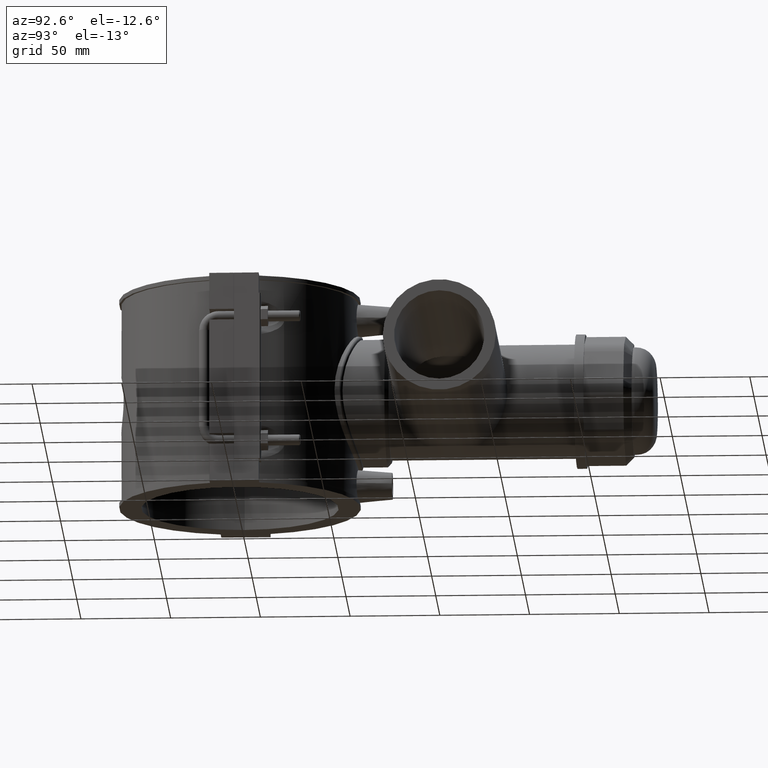
[diagram: clean part render]
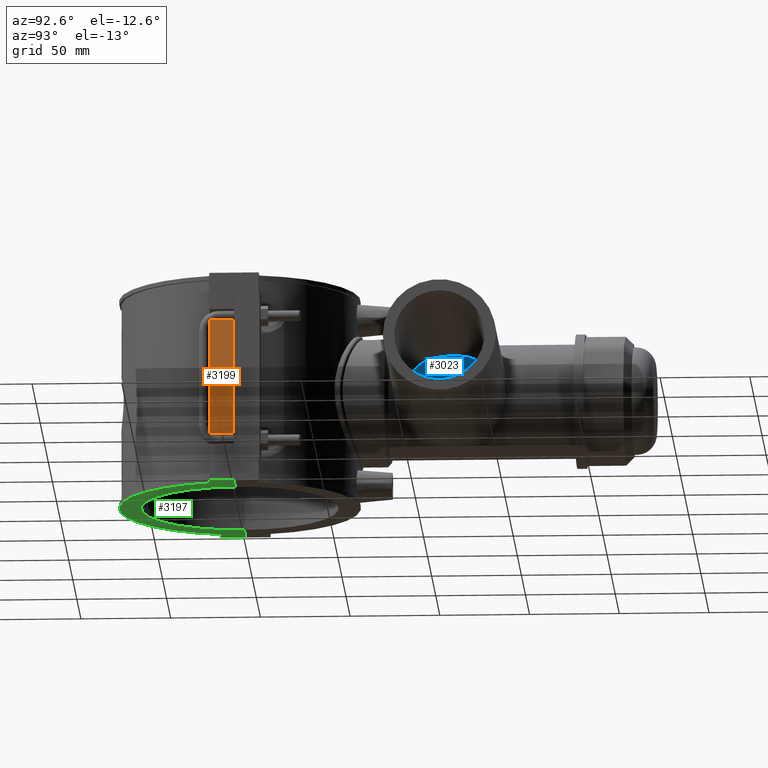
[diagram: same view with three faces highlighted in distinct colors, each labeled with its STEP entity id]
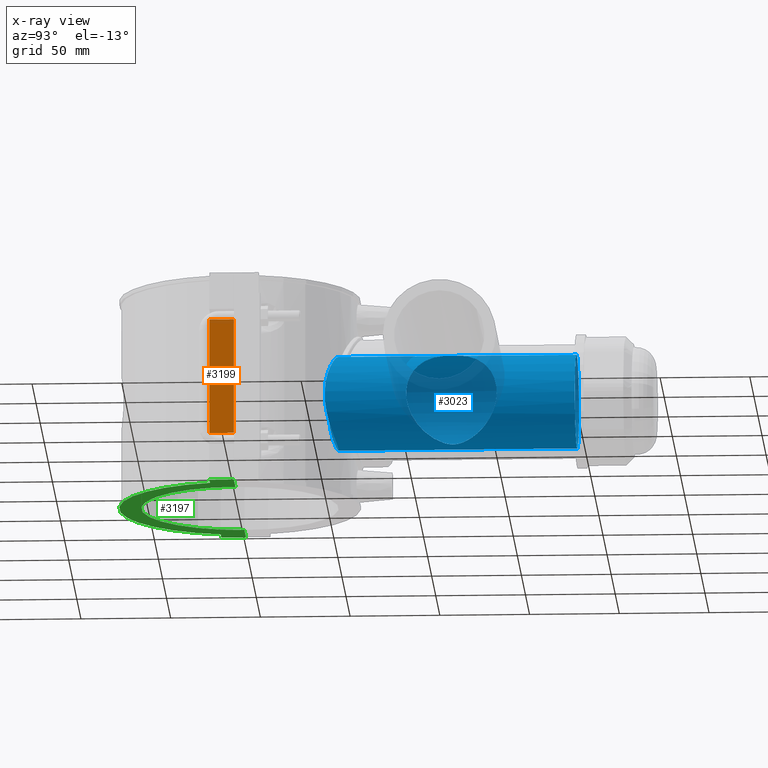
[diagram: x-ray of the same camera — body ghosted, the three highlighted faces saturated]
A machine part, auxiliary view with three faces highlighted in distinct colors.
The next image is the same camera in x-ray (body ghosted, the three faces saturated) — at least one of them is partly hidden behind the body in this view.
Their STEP definitions:

[orange] entity #3199 — the highlighted planar face has unit normal (1, 0, 0).
#290=LINE('',#6492,#569);
#299=LINE('',#6508,#578);
#301=LINE('',#6511,#580);
#309=LINE('',#6526,#588);
#569=VECTOR('',#4284,13.7);
#578=VECTOR('',#4299,13.7);
#580=VECTOR('',#4303,64.8);
#588=VECTOR('',#4317,64.8);
#930=FACE_OUTER_BOUND('',#1171,.T.);
#1171=EDGE_LOOP('',(#2850,#2851,#2852,#2853));
#1571=VERTEX_POINT('',#6489);
#1572=VERTEX_POINT('',#6491);
#1575=VERTEX_POINT('',#6505);
#1576=VERTEX_POINT('',#6507);
#1988=EDGE_CURVE('',#1572,#1571,#290,.T.);
#1997=EDGE_CURVE('',#1576,#1575,#299,.T.);
#1999=EDGE_CURVE('',#1575,#1572,#301,.T.);
#2007=EDGE_CURVE('',#1576,#1571,#309,.T.);
#2850=ORIENTED_EDGE('',*,*,#1988,.T.);
#2851=ORIENTED_EDGE('',*,*,#2007,.F.);
#2852=ORIENTED_EDGE('',*,*,#1997,.T.);
#2853=ORIENTED_EDGE('',*,*,#1999,.T.);
#3015=PLANE('',#3488);
#3199=ADVANCED_FACE('',(#930),#3015,.T.);
#3488=AXIS2_PLACEMENT_3D('',#6537,#4331,#4332);
#4284=DIRECTION('',(0.,-1.,0.));
#4299=DIRECTION('',(0.,1.,0.));
#4303=DIRECTION('',(0.,0.,1.));
#4317=DIRECTION('',(0.,0.,1.));
#4331=DIRECTION('center_axis',(1.,0.,0.));
#4332=DIRECTION('ref_axis',(0.,1.,0.));
#6489=CARTESIAN_POINT('',(74.,-13.75,32.4));
#6491=CARTESIAN_POINT('',(74.,-0.0499999999999995,32.4));
#6492=CARTESIAN_POINT('',(74.,-13.75,32.4));
#6505=CARTESIAN_POINT('',(74.,-0.0499999999999995,-32.4));
#6507=CARTESIAN_POINT('',(74.,-13.75,-32.4));
#6508=CARTESIAN_POINT('',(74.,-13.75,-32.4));
#6511=CARTESIAN_POINT('',(74.,-0.0499999999999995,-29.5));
#6526=CARTESIAN_POINT('',(74.,-13.75,0.));
#6537=CARTESIAN_POINT('Origin',(74.,-13.75,0.));

[blue] entity #3023 — the highlighted cylindrical surface (bore or boss wall) has radius 26.18 mm, axis along (0, 1, 0).
#598=FACE_BOUND('',#940,.T.);
#599=FACE_BOUND('',#941,.T.);
#657=B_SPLINE_CURVE_WITH_KNOTS('',3,(#4363,#4364,#4365,#4366,#4367,#4368,
#4369,#4370,#4371,#4372,#4373,#4374,#4375,#4376,#4377,#4378,#4379,#4380,
#4381,#4382,#4383,#4384,#4385,#4386,#4387,#4388,#4389,#4390,#4391,#4392,
#4393,#4394,#4395,#4396,#4397,#4398,#4399,#4400,#4401,#4402,#4403,#4404,
#4405,#4406,#4407,#4408,#4409,#4410,#4411,#4412,#4413,#4414,#4415,#4416,
#4417,#4418,#4419,#4420,#4421,#4422,#4423,#4424,#4425,#4426,#4427,#4428),
 .UNSPECIFIED.,.T.,.F.,(4,2,2,2,2,2,2,2,2,2,2,2,2,2,2,2,2,2,2,2,2,2,2,2,
2,2,2,2,2,2,2,2,4),(0.,0.502641785912782,1.00528357182556,1.50792535773835,
2.01056714365113,2.51211281595365,3.01365848825617,3.51520416055869,4.01674983286122,
4.51829550516374,5.01984117746626,5.52138684976878,6.0229325220713,6.52557430798408,
7.02821609389687,7.53085787980965,8.03349966572243,8.53614145163521,9.038783237548,
9.54142502346078,10.0440668093736,10.5456124816761,11.0471581539786,11.5487038262811,
12.0502494985836,12.5517951708862,13.0533408431887,13.5548865154912,14.0564321877937,
14.5590739737065,15.0617157596193,15.5643575455321,16.0669993314449),
 .UNSPECIFIED.);
#658=B_SPLINE_CURVE_WITH_KNOTS('',3,(#4430,#4431,#4432,#4433,#4434,#4435,
#4436,#4437,#4438,#4439,#4440,#4441,#4442,#4443,#4444,#4445,#4446,#4447,
#4448,#4449,#4450,#4451,#4452,#4453,#4454,#4455,#4456,#4457,#4458,#4459,
#4460,#4461,#4462,#4463,#4464,#4465,#4466,#4467,#4468,#4469,#4470,#4471,
#4472,#4473,#4474,#4475,#4476,#4477,#4478,#4479,#4480,#4481,#4482,#4483,
#4484,#4485,#4486,#4487,#4488,#4489,#4490,#4491,#4492,#4493,#4494,#4495,
#4496,#4497,#4498,#4499,#4500,#4501,#4502,#4503),.UNSPECIFIED.,.T.,.F.,
(4,2,2,2,2,2,2,2,2,2,2,2,2,2,2,2,2,2,2,2,2,2,2,2,2,2,2,2,2,2,2,2,2,2,2,
2,4),(0.,0.299969942934018,0.599939885868036,1.19987977173607,1.79981965760411,
2.39975954347215,2.91644772703775,3.43313591060335,3.94982409416896,4.46651227773456,
4.98320046130016,5.49988864486577,6.01657682843137,6.53326501199697,7.133204897865,
7.73314478373304,8.33308466960107,8.63305461253508,8.9330245554691,9.23299449840312,
9.53296444133713,10.1329043272052,10.7328442130732,11.3327840989412,11.8494722825068,
12.3661604660724,12.882848649638,13.3995368332036,13.9162250167692,14.4329132003348,
14.9496013839005,15.4662895674661,16.0662294533341,16.6661693392021,17.2661092250702,
17.5660791680042,17.8660491109382),.UNSPECIFIED.);
#704=CYLINDRICAL_SURFACE('',#3211,26.18);
#754=FACE_OUTER_BOUND('',#939,.T.);
#939=EDGE_LOOP('',(#2022));
#940=EDGE_LOOP('',(#2023));
#941=EDGE_LOOP('',(#2024));
#1182=CIRCLE('',#3210,26.18);
#1291=VERTEX_POINT('',#4359);
#1292=VERTEX_POINT('',#4362);
#1293=VERTEX_POINT('',#4429);
#1586=EDGE_CURVE('',#1291,#1291,#1182,.T.);
#1587=EDGE_CURVE('',#1292,#1292,#657,.T.);
#1588=EDGE_CURVE('',#1293,#1293,#658,.T.);
#2022=ORIENTED_EDGE('',*,*,#1587,.F.);
#2023=ORIENTED_EDGE('',*,*,#1588,.F.);
#2024=ORIENTED_EDGE('',*,*,#1586,.T.);
#3023=ADVANCED_FACE('',(#754,#598,#599),#704,.F.);
#3210=AXIS2_PLACEMENT_3D('',#4360,#3502,#3503);
#3211=AXIS2_PLACEMENT_3D('',#4361,#3504,#3505);
#3502=DIRECTION('center_axis',(0.,1.,3.06161699786838E-16));
#3503=DIRECTION('ref_axis',(1.,0.,0.));
#3504=DIRECTION('center_axis',(0.,1.,3.06161699786838E-16));
#3505=DIRECTION('ref_axis',(0.,0.,1.));
#4359=CARTESIAN_POINT('',(-26.18,187.75,4.38490909668706E-14));
#4360=CARTESIAN_POINT('Origin',(0.,187.75,4.06429656467028E-14));
#4361=CARTESIAN_POINT('Origin',(0.,93.85,1.18943820367187E-14));
#4362=CARTESIAN_POINT('',(-26.18,48.3694903839187,4.10782519111308E-14));
#4363=CARTESIAN_POINT('Ctrl Pts',(-26.18,48.3694903839187,4.10782519111308E-14));
#4364=CARTESIAN_POINT('Ctrl Pts',(-26.18,48.3694903839187,1.67547261970932));
#4365=CARTESIAN_POINT('Ctrl Pts',(-26.0166157600901,48.459074805483,3.39727715157085));
#4366=CARTESIAN_POINT('Ctrl Pts',(-25.3402956361719,48.816141215025,6.80258813364206));
#4367=CARTESIAN_POINT('Ctrl Pts',(-24.8276225373455,49.0830724588949,8.48620449540345));
#4368=CARTESIAN_POINT('Ctrl Pts',(-23.4844910077931,49.7396966017155,11.7006547155546));
#4369=CARTESIAN_POINT('Ctrl Pts',(-22.6529653456642,50.1290863342476,13.2345548351411));
#4370=CARTESIAN_POINT('Ctrl Pts',(-20.7411817459974,50.9498333186021,16.0659161199004));
#4371=CARTESIAN_POINT('Ctrl Pts',(-19.6606740718611,51.3804026744449,17.3634369910666));
#4372=CARTESIAN_POINT('Ctrl Pts',(-17.3659417896138,52.2006270796678,19.6581692733139));
#4373=CARTESIAN_POINT('Ctrl Pts',(-16.0696519519829,52.6205700713862,20.738329417441));
#4374=CARTESIAN_POINT('Ctrl Pts',(-13.2377521126687,53.4033709371957,22.6511355134756));
#4375=CARTESIAN_POINT('Ctrl Pts',(-11.7020720519269,53.7656102674841,23.4839308239278));
#4376=CARTESIAN_POINT('Ctrl Pts',(-8.48392941943138,54.3663708694503,24.8285411123988));
#4377=CARTESIAN_POINT('Ctrl Pts',(-6.79844419411746,54.6050044841328,25.3414284693075));
#4378=CARTESIAN_POINT('Ctrl Pts',(-3.39242013823078,54.9219158786696,26.0172697634133));
#4379=CARTESIAN_POINT('Ctrl Pts',(-1.67181890767508,55.,26.18));
#4380=CARTESIAN_POINT('Ctrl Pts',(1.67181890767507,55.,26.18));
#4381=CARTESIAN_POINT('Ctrl Pts',(3.39242013823077,54.9219158786696,26.0172697634133));
#4382=CARTESIAN_POINT('Ctrl Pts',(6.79844419411746,54.6050044841328,25.3414284693075));
#4383=CARTESIAN_POINT('Ctrl Pts',(8.48392941943138,54.3663708694503,24.8285411123988));
#4384=CARTESIAN_POINT('Ctrl Pts',(11.7020720519269,53.7656102674841,23.4839308239278));
#4385=CARTESIAN_POINT('Ctrl Pts',(13.2377521126686,53.4033709371957,22.6511355134756));
#4386=CARTESIAN_POINT('Ctrl Pts',(16.0696519519829,52.6205700713862,20.7383294174411));
#4387=CARTESIAN_POINT('Ctrl Pts',(17.3659417896138,52.2006270796678,19.6581692733139));
#4388=CARTESIAN_POINT('Ctrl Pts',(19.660674071861,51.3804026744449,17.3634369910666));
#4389=CARTESIAN_POINT('Ctrl Pts',(20.7411817459974,50.9498333186021,16.0659161199005));
#4390=CARTESIAN_POINT('Ctrl Pts',(22.6529653456642,50.1290863342476,13.2345548351411));
#4391=CARTESIAN_POINT('Ctrl Pts',(23.4844910077931,49.7396966017155,11.7006547155547));
#4392=CARTESIAN_POINT('Ctrl Pts',(24.8276225373455,49.083072458895,8.48620449540346));
#4393=CARTESIAN_POINT('Ctrl Pts',(25.3402956361719,48.816141215025,6.80258813364207));
#4394=CARTESIAN_POINT('Ctrl Pts',(26.0166157600901,48.459074805483,3.39727715157086));
#4395=CARTESIAN_POINT('Ctrl Pts',(26.18,48.3694903839187,1.67547261970932));
#4396=CARTESIAN_POINT('Ctrl Pts',(26.18,48.3694903839187,-1.67547261970923));
#4397=CARTESIAN_POINT('Ctrl Pts',(26.0166157600901,48.459074805483,-3.39727715157077));
#4398=CARTESIAN_POINT('Ctrl Pts',(25.3402956361719,48.816141215025,-6.80258813364198));
#4399=CARTESIAN_POINT('Ctrl Pts',(24.8276225373455,49.0830724588949,-8.48620449540337));
#4400=CARTESIAN_POINT('Ctrl Pts',(23.4844910077931,49.7396966017155,-11.7006547155546));
#4401=CARTESIAN_POINT('Ctrl Pts',(22.6529653456642,50.1290863342476,-13.234554835141));
#4402=CARTESIAN_POINT('Ctrl Pts',(20.7411817459974,50.9498333186021,-16.0659161199004));
#4403=CARTESIAN_POINT('Ctrl Pts',(19.6606740718611,51.3804026744449,-17.3634369910665));
#4404=CARTESIAN_POINT('Ctrl Pts',(17.3659417896138,52.2006270796678,-19.6581692733138));
#4405=CARTESIAN_POINT('Ctrl Pts',(16.0696519519829,52.6205700713862,-20.738329417441));
#4406=CARTESIAN_POINT('Ctrl Pts',(13.2377521126687,53.4033709371957,-22.6511355134755));
#4407=CARTESIAN_POINT('Ctrl Pts',(11.7020720519269,53.7656102674841,-23.4839308239277));
#4408=CARTESIAN_POINT('Ctrl Pts',(8.48392941943139,54.3663708694503,-24.8285411123987));
#4409=CARTESIAN_POINT('Ctrl Pts',(6.79844419411746,54.6050044841328,-25.3414284693074));
#4410=CARTESIAN_POINT('Ctrl Pts',(3.39242013823078,54.9219158786696,-26.0172697634132));
#4411=CARTESIAN_POINT('Ctrl Pts',(1.67181890767508,55.,-26.1799999999999));
#4412=CARTESIAN_POINT('Ctrl Pts',(-1.67181890767506,55.,-26.1799999999999));
#4413=CARTESIAN_POINT('Ctrl Pts',(-3.39242013823077,54.9219158786696,-26.0172697634132));
#4414=CARTESIAN_POINT('Ctrl Pts',(-6.79844419411746,54.6050044841328,-25.3414284693074));
#4415=CARTESIAN_POINT('Ctrl Pts',(-8.48392941943138,54.3663708694503,-24.8285411123987));
#4416=CARTESIAN_POINT('Ctrl Pts',(-11.7020720519269,53.7656102674841,-23.4839308239277));
#4417=CARTESIAN_POINT('Ctrl Pts',(-13.2377521126686,53.4033709371957,-22.6511355134755));
#4418=CARTESIAN_POINT('Ctrl Pts',(-16.0696519519829,52.6205700713862,-20.738329417441));
#4419=CARTESIAN_POINT('Ctrl Pts',(-17.3659417896137,52.2006270796678,-19.6581692733138));
#4420=CARTESIAN_POINT('Ctrl Pts',(-19.660674071861,51.3804026744449,-17.3634369910665));
#4421=CARTESIAN_POINT('Ctrl Pts',(-20.7411817459974,50.9498333186021,-16.0659161199004));
#4422=CARTESIAN_POINT('Ctrl Pts',(-22.6529653456642,50.1290863342476,-13.234554835141));
#4423=CARTESIAN_POINT('Ctrl Pts',(-23.4844910077931,49.7396966017155,-11.7006547155546));
#4424=CARTESIAN_POINT('Ctrl Pts',(-24.8276225373455,49.083072458895,-8.48620449540338));
#4425=CARTESIAN_POINT('Ctrl Pts',(-25.3402956361719,48.816141215025,-6.80258813364199));
#4426=CARTESIAN_POINT('Ctrl Pts',(-26.0166157600901,48.459074805483,-3.39727715157078));
#4427=CARTESIAN_POINT('Ctrl Pts',(-26.18,48.3694903839187,-1.67547261970923));
#4428=CARTESIAN_POINT('Ctrl Pts',(-26.18,48.3694903839187,4.21884749357559E-14));
#4429=CARTESIAN_POINT('',(7.09594250258525,119.,-25.2));
#4430=CARTESIAN_POINT('Ctrl Pts',(7.09594250258525,119.,-25.2));
#4431=CARTESIAN_POINT('Ctrl Pts',(7.09594250258525,118.00010019022,-25.2));
#4432=CARTESIAN_POINT('Ctrl Pts',(7.30172489631965,117.106954310859,-25.1431530606944));
#4433=CARTESIAN_POINT('Ctrl Pts',(7.90969299203481,115.41786220604,-24.9585671276033));
#4434=CARTESIAN_POINT('Ctrl Pts',(8.31362801066076,114.622672163892,-24.8296769342212));
#4435=CARTESIAN_POINT('Ctrl Pts',(9.68834014962215,112.284070637999,-24.3407880178826));
#4436=CARTESIAN_POINT('Ctrl Pts',(10.8114268682073,110.796590709381,-23.8809340592015));
#4437=CARTESIAN_POINT('Ctrl Pts',(13.1918754488094,107.844976448002,-22.6530436117208));
#4438=CARTESIAN_POINT('Ctrl Pts',(14.4444823567898,106.403325041398,-21.887817571968));
#4439=CARTESIAN_POINT('Ctrl Pts',(16.8889262194106,103.661519813103,-20.0619989591788));
#4440=CARTESIAN_POINT('Ctrl Pts',(18.081997726898,102.362769834881,-19.0009516066832));
#4441=CARTESIAN_POINT('Ctrl Pts',(20.1256360768863,100.163051352959,-16.8012331247605));
#4442=CARTESIAN_POINT('Ctrl Pts',(21.059595228968,99.1697312957852,-15.6307768019096));
#4443=CARTESIAN_POINT('Ctrl Pts',(22.7673302327186,97.3647433195745,-13.0183105234442));
#4444=CARTESIAN_POINT('Ctrl Pts',(23.5408699034135,96.5532025478432,-11.5760583441404));
#4445=CARTESIAN_POINT('Ctrl Pts',(24.8202415977354,95.2149090457057,-8.49313432456428));
#4446=CARTESIAN_POINT('Ctrl Pts',(25.3272718617665,94.6868787052353,-6.84853803802508));
#4447=CARTESIAN_POINT('Ctrl Pts',(26.0072983160033,93.9792739347991,-3.46317882502041));
#4448=CARTESIAN_POINT('Ctrl Pts',(26.18,93.8,-1.72229394521868));
#4449=CARTESIAN_POINT('Ctrl Pts',(26.18,93.8,1.72229394521867));
#4450=CARTESIAN_POINT('Ctrl Pts',(26.0072983160033,93.9792739347991,3.46317882502041));
#4451=CARTESIAN_POINT('Ctrl Pts',(25.3272718617666,94.6868787052353,6.84853803802507));
#4452=CARTESIAN_POINT('Ctrl Pts',(24.8202415977354,95.2149090457057,8.49313432456427));
#4453=CARTESIAN_POINT('Ctrl Pts',(23.5408699034135,96.5532025478432,11.5760583441404));
#4454=CARTESIAN_POINT('Ctrl Pts',(22.7673302327187,97.3647433195745,13.0183105234442));
#4455=CARTESIAN_POINT('Ctrl Pts',(21.0595952289681,99.1697312957852,15.6307768019096));
#4456=CARTESIAN_POINT('Ctrl Pts',(20.1256360768864,100.163051352959,16.8012331247605));
#4457=CARTESIAN_POINT('Ctrl Pts',(18.0819977268981,102.362769834881,19.0009516066832));
#4458=CARTESIAN_POINT('Ctrl Pts',(16.8889262194107,103.661519813103,20.0619989591789));
#4459=CARTESIAN_POINT('Ctrl Pts',(14.4444823567899,106.403325041398,21.8878175719679));
#4460=CARTESIAN_POINT('Ctrl Pts',(13.1918754488095,107.844976448002,22.6530436117208));
#4461=CARTESIAN_POINT('Ctrl Pts',(10.8114268682075,110.796590709381,23.8809340592015));
#4462=CARTESIAN_POINT('Ctrl Pts',(9.68834014962234,112.284070637999,24.3407880178827));
#4463=CARTESIAN_POINT('Ctrl Pts',(8.31362801066099,114.622672163892,24.8296769342212));
#4464=CARTESIAN_POINT('Ctrl Pts',(7.90969299203507,115.41786220604,24.9585671276033));
#4465=CARTESIAN_POINT('Ctrl Pts',(7.30172489631993,117.106954310859,25.1431530606944));
#4466=CARTESIAN_POINT('Ctrl Pts',(7.09594250258554,118.00010019022,25.2));
#4467=CARTESIAN_POINT('Ctrl Pts',(7.09594250258554,119.99989980978,25.2));
#4468=CARTESIAN_POINT('Ctrl Pts',(7.30172489631993,120.893045689142,25.1431530606944));
#4469=CARTESIAN_POINT('Ctrl Pts',(7.90969299203508,122.58213779396,24.9585671276033));
#4470=CARTESIAN_POINT('Ctrl Pts',(8.31362801066101,123.377327836108,24.8296769342212));
#4471=CARTESIAN_POINT('Ctrl Pts',(9.68834014962236,125.715929362001,24.3407880178826));
#4472=CARTESIAN_POINT('Ctrl Pts',(10.8114268682074,127.203409290619,23.8809340592015));
#4473=CARTESIAN_POINT('Ctrl Pts',(13.1918754488095,130.155023551998,22.6530436117208));
#4474=CARTESIAN_POINT('Ctrl Pts',(14.4444823567899,131.596674958602,21.887817571968));
#4475=CARTESIAN_POINT('Ctrl Pts',(16.8889262194107,134.338480186897,20.0619989591788));
#4476=CARTESIAN_POINT('Ctrl Pts',(18.0819977268981,135.637230165119,19.0009516066832));
#4477=CARTESIAN_POINT('Ctrl Pts',(20.1256360768864,137.836948647041,16.8012331247605));
#4478=CARTESIAN_POINT('Ctrl Pts',(21.0595952289681,138.830268704215,15.6307768019096));
#4479=CARTESIAN_POINT('Ctrl Pts',(22.7673302327187,140.635256680426,13.0183105234442));
#4480=CARTESIAN_POINT('Ctrl Pts',(23.5408699034135,141.446797452157,11.5760583441404));
#4481=CARTESIAN_POINT('Ctrl Pts',(24.8202415977354,142.785090954294,8.49313432456428));
#4482=CARTESIAN_POINT('Ctrl Pts',(25.3272718617665,143.313121294765,6.84853803802508));
#4483=CARTESIAN_POINT('Ctrl Pts',(26.0072983160033,144.020726065201,3.46317882502042));
#4484=CARTESIAN_POINT('Ctrl Pts',(26.18,144.2,1.72229394521869));
#4485=CARTESIAN_POINT('Ctrl Pts',(26.18,144.2,-1.72229394521867));
#4486=CARTESIAN_POINT('Ctrl Pts',(26.0072983160033,144.020726065201,-3.46317882502041));
#4487=CARTESIAN_POINT('Ctrl Pts',(25.3272718617665,143.313121294765,-6.84853803802507));
#4488=CARTESIAN_POINT('Ctrl Pts',(24.8202415977354,142.785090954294,-8.49313432456427));
#4489=CARTESIAN_POINT('Ctrl Pts',(23.5408699034135,141.446797452157,-11.5760583441404));
#4490=CARTESIAN_POINT('Ctrl Pts',(22.7673302327186,140.635256680426,-13.0183105234442));
#4491=CARTESIAN_POINT('Ctrl Pts',(21.059595228968,138.830268704215,-15.6307768019096));
#4492=CARTESIAN_POINT('Ctrl Pts',(20.1256360768864,137.836948647041,-16.8012331247605));
#4493=CARTESIAN_POINT('Ctrl Pts',(18.081997726898,135.637230165119,-19.0009516066832));
#4494=CARTESIAN_POINT('Ctrl Pts',(16.8889262194106,134.338480186897,-20.0619989591789));
#4495=CARTESIAN_POINT('Ctrl Pts',(14.4444823567898,131.596674958602,-21.887817571968));
#4496=CARTESIAN_POINT('Ctrl Pts',(13.1918754488094,130.155023551998,-22.6530436117208));
#4497=CARTESIAN_POINT('Ctrl Pts',(10.8114268682073,127.203409290619,-23.8809340592015));
#4498=CARTESIAN_POINT('Ctrl Pts',(9.68834014962215,125.715929362001,-24.3407880178826));
#4499=CARTESIAN_POINT('Ctrl Pts',(8.31362801066076,123.377327836108,-24.8296769342212));
#4500=CARTESIAN_POINT('Ctrl Pts',(7.90969299203481,122.58213779396,-24.9585671276033));
#4501=CARTESIAN_POINT('Ctrl Pts',(7.30172489631965,120.893045689141,-25.1431530606944));
#4502=CARTESIAN_POINT('Ctrl Pts',(7.09594250258525,119.99989980978,-25.2));
#4503=CARTESIAN_POINT('Ctrl Pts',(7.09594250258525,119.,-25.2));

[green] entity #3197 — the highlighted planar face has unit normal (0, 0, 1).
#117=LINE('',#5319,#396);
#136=LINE('',#5505,#415);
#262=LINE('',#6225,#541);
#303=LINE('',#6515,#582);
#308=LINE('',#6524,#587);
#311=LINE('',#6534,#590);
#396=VECTOR('',#3781,8.09916616612503);
#415=VECTOR('',#3834,8.09916616612502);
#541=VECTOR('',#4168,13.7);
#582=VECTOR('',#4305,19.0000227272774);
#587=VECTOR('',#4314,13.7);
#590=VECTOR('',#4327,19.0000227272775);
#928=FACE_OUTER_BOUND('',#1169,.T.);
#1169=EDGE_LOOP('',(#2834,#2835,#2836,#2837,#2838,#2839,#2840,#2841));
#1222=CIRCLE('',#3303,67.32);
#1287=CIRCLE('',#3484,55.);
#1366=VERTEX_POINT('',#5248);
#1367=VERTEX_POINT('',#5249);
#1387=VERTEX_POINT('',#5317);
#1416=VERTEX_POINT('',#5504);
#1539=VERTEX_POINT('',#6223);
#1577=VERTEX_POINT('',#6512);
#1578=VERTEX_POINT('',#6514);
#1581=VERTEX_POINT('',#6528);
#1695=EDGE_CURVE('',#1366,#1367,#1222,.T.);
#1719=EDGE_CURVE('',#1366,#1387,#117,.T.);
#1754=EDGE_CURVE('',#1416,#1367,#136,.T.);
#1935=EDGE_CURVE('',#1387,#1539,#262,.T.);
#2001=EDGE_CURVE('',#1578,#1577,#303,.T.);
#2006=EDGE_CURVE('',#1577,#1416,#308,.T.);
#2008=EDGE_CURVE('',#1581,#1578,#1287,.T.);
#2011=EDGE_CURVE('',#1539,#1581,#311,.T.);
#2834=ORIENTED_EDGE('',*,*,#2001,.T.);
#2835=ORIENTED_EDGE('',*,*,#2006,.T.);
#2836=ORIENTED_EDGE('',*,*,#1754,.T.);
#2837=ORIENTED_EDGE('',*,*,#1695,.F.);
#2838=ORIENTED_EDGE('',*,*,#1719,.T.);
#2839=ORIENTED_EDGE('',*,*,#1935,.T.);
#2840=ORIENTED_EDGE('',*,*,#2011,.T.);
#2841=ORIENTED_EDGE('',*,*,#2008,.T.);
#3013=PLANE('',#3486);
#3197=ADVANCED_FACE('',(#928),#3013,.F.);
#3303=AXIS2_PLACEMENT_3D('',#5250,#3748,#3749);
#3484=AXIS2_PLACEMENT_3D('',#6529,#4320,#4321);
#3486=AXIS2_PLACEMENT_3D('',#6533,#4325,#4326);
#3748=DIRECTION('center_axis',(0.,0.,1.));
#3749=DIRECTION('ref_axis',(-0.97891910032494,-0.204248366013072,0.));
#3781=DIRECTION('',(-1.,0.,0.));
#3834=DIRECTION('',(-1.,0.,0.));
#4168=DIRECTION('',(0.,1.,0.));
#4305=DIRECTION('',(1.,5.27449705533489E-17,0.));
#4314=DIRECTION('',(0.,-1.,0.));
#4320=DIRECTION('center_axis',(0.,0.,1.));
#4321=DIRECTION('ref_axis',(-1.,0.,0.));
#4325=DIRECTION('center_axis',(0.,0.,1.));
#4326=DIRECTION('ref_axis',(1.,0.,0.));
#4327=DIRECTION('',(1.,5.27449705533489E-17,0.));
#5248=CARTESIAN_POINT('',(-65.900833833875,-13.75,-59.));
#5249=CARTESIAN_POINT('',(65.900833833875,-13.75,-59.));
#5250=CARTESIAN_POINT('Origin',(0.,0.,-59.));
#5317=CARTESIAN_POINT('',(-74.,-13.75,-59.));
#5319=CARTESIAN_POINT('',(-74.,-13.75,-59.));
#5504=CARTESIAN_POINT('',(74.,-13.75,-59.));
#5505=CARTESIAN_POINT('',(64.5518202686803,-13.75,-59.));
#6223=CARTESIAN_POINT('',(-74.,-0.0500000000000078,-59.));
#6225=CARTESIAN_POINT('',(-74.,13.75,-59.));
#6512=CARTESIAN_POINT('',(74.,-0.05,-59.));
#6514=CARTESIAN_POINT('',(54.9999772727226,-0.050000000000001,-59.));
#6515=CARTESIAN_POINT('',(-72.0235519553924,-0.0500000000000077,-59.));
#6524=CARTESIAN_POINT('',(74.,-13.75,-59.));
#6528=CARTESIAN_POINT('',(-54.9999772727226,-0.0500000000000068,-59.));
#6529=CARTESIAN_POINT('Origin',(0.,0.,-59.));
#6533=CARTESIAN_POINT('Origin',(-70.0471039107848,-1.214036024795E-16,-59.));
#6534=CARTESIAN_POINT('',(-72.0235519553924,-0.0500000000000077,-59.));